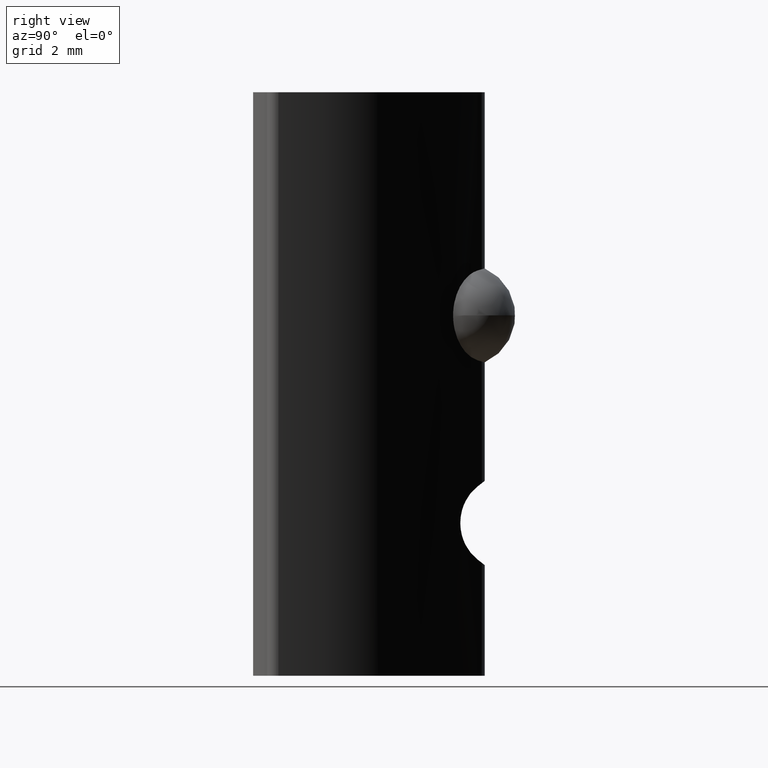
[diagram: clean part render]
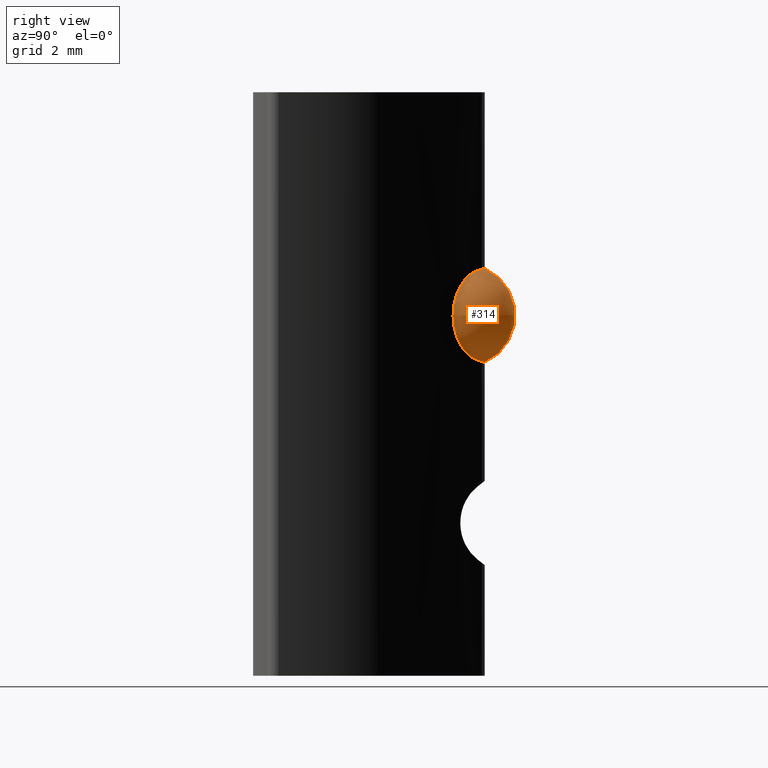
[diagram: same view with one face highlighted and labeled with its STEP entity id]
A machine part, right view. The second image highlights one B-rep face of the part: STEP entity #314.
In plain terms, the highlighted spherical surface has radius 1.5 mm.
Its self-contained STEP definition (entity closure, byte-faithful):
#59=FACE_BOUND('',#91,.T.);
#61=B_SPLINE_CURVE_WITH_KNOTS('',3,(#488,#489,#490,#491,#492,#493,#494,
#495,#496,#497,#498,#499,#500,#501,#502,#503,#504,#505),.UNSPECIFIED.,.F.,
 .F.,(4,2,2,2,2,2,2,2,4),(0.224927419825382,0.268885237807746,0.310193641972786,
0.356110090594978,0.402026539217171,0.447942987839363,0.493859436461555,
0.535167840626594,0.579125658608959),.UNSPECIFIED.);
#62=B_SPLINE_CURVE_WITH_KNOTS('',3,(#507,#508,#509,#510,#511,#512,#513,
#514,#515,#516),.UNSPECIFIED.,.F.,.F.,(4,2,2,2,4),(0.184780951995085,0.197914113345664,
0.236162461852627,0.273970569130265,0.311778676407902),.UNSPECIFIED.);
#63=B_SPLINE_CURVE_WITH_KNOTS('',3,(#518,#519,#520,#521,#522,#523,#524,
#525,#526,#527,#528,#529,#530,#531,#532,#533,#534,#535,#536),
 .UNSPECIFIED.,.F.,.F.,(4,2,2,2,3,2,2,2,4),(-0.177099119391789,-0.133141301409424,
-0.0918328972443856,-0.0459164486221928,0.,0.045916448622193,0.091832897244386,
0.133141301409424,0.177099119391789),.UNSPECIFIED.);
#64=B_SPLINE_CURVE_WITH_KNOTS('',3,(#537,#538,#539,#540,#541,#542,#543,
#544,#545,#546),.UNSPECIFIED.,.F.,.F.,(4,2,2,2,4),(0.314556690148757,0.352364797426395,
0.390172904704032,0.428421253210995,0.441554414561574),.UNSPECIFIED.);
#74=FACE_OUTER_BOUND('',#90,.T.);
#90=EDGE_LOOP('',(#213,#214));
#91=EDGE_LOOP('',(#215,#216,#217,#218));
#108=CIRCLE('',#354,1.5);
#129=VERTEX_POINT('',#483);
#130=VERTEX_POINT('',#484);
#131=VERTEX_POINT('',#486);
#132=VERTEX_POINT('',#487);
#133=VERTEX_POINT('',#506);
#134=VERTEX_POINT('',#517);
#164=EDGE_CURVE('',#129,#130,#108,.T.);
#165=EDGE_CURVE('',#131,#132,#61,.T.);
#166=EDGE_CURVE('',#133,#131,#62,.T.);
#167=EDGE_CURVE('',#134,#133,#63,.T.);
#168=EDGE_CURVE('',#132,#134,#64,.T.);
#213=ORIENTED_EDGE('',*,*,#164,.T.);
#214=ORIENTED_EDGE('',*,*,#164,.F.);
#215=ORIENTED_EDGE('',*,*,#165,.F.);
#216=ORIENTED_EDGE('',*,*,#166,.F.);
#217=ORIENTED_EDGE('',*,*,#167,.F.);
#218=ORIENTED_EDGE('',*,*,#168,.F.);
#311=SPHERICAL_SURFACE('',#353,1.5);
#314=ADVANCED_FACE('',(#74,#59),#311,.T.);
#353=AXIS2_PLACEMENT_3D('',#482,#392,#393);
#354=AXIS2_PLACEMENT_3D('',#485,#394,#395);
#392=DIRECTION('center_axis',(1.,0.,0.));
#393=DIRECTION('ref_axis',(0.,-1.,0.));
#394=DIRECTION('center_axis',(0.,0.,1.));
#395=DIRECTION('ref_axis',(0.,1.,0.));
#482=CARTESIAN_POINT('Origin',(0.,5.5,10.5));
#483=CARTESIAN_POINT('',(1.5,5.5,10.5));
#484=CARTESIAN_POINT('',(-1.5,5.5,10.5));
#485=CARTESIAN_POINT('Origin',(0.,5.5,10.5));
#486=CARTESIAN_POINT('',(0.611941855946153,5.9033888333115,9.19125838527967));
#487=CARTESIAN_POINT('',(0.611941855946153,5.9033888333115,11.8087416147203));
#488=CARTESIAN_POINT('Ctrl Pts',(0.611941855946152,5.9033888333115,9.19125838527967));
#489=CARTESIAN_POINT('Ctrl Pts',(0.734621195394697,5.80846866472019,9.2193639228349));
#490=CARTESIAN_POINT('Ctrl Pts',(0.855099179531908,5.71189845083683,9.27714501025726));
#491=CARTESIAN_POINT('Ctrl Pts',(1.04605820580299,5.55504918070396,9.41755293763258));
#492=CARTESIAN_POINT('Ctrl Pts',(1.14446349483087,5.47192128164891,9.52103385164395));
#493=CARTESIAN_POINT('Ctrl Pts',(1.29158328291991,5.34538174011869,9.7375489539689));
#494=CARTESIAN_POINT('Ctrl Pts',(1.35821350391953,5.28662061536966,9.87839385094758));
#495=CARTESIAN_POINT('Ctrl Pts',(1.44610736328998,5.20843811836978,10.1830866812942));
#496=CARTESIAN_POINT('Ctrl Pts',(1.46743244767338,5.18912701707077,10.3469451712594));
#497=CARTESIAN_POINT('Ctrl Pts',(1.46743244767338,5.18912701707077,10.6530548287406));
#498=CARTESIAN_POINT('Ctrl Pts',(1.44610736328998,5.20843811836978,10.8169133187058));
#499=CARTESIAN_POINT('Ctrl Pts',(1.35821350391953,5.28662061536966,11.1216061490524));
#500=CARTESIAN_POINT('Ctrl Pts',(1.29158328291991,5.34538174011869,11.2624510460311));
#501=CARTESIAN_POINT('Ctrl Pts',(1.14446349483087,5.47192128164891,11.478966148356));
#502=CARTESIAN_POINT('Ctrl Pts',(1.04605820580299,5.55504918070396,11.5824470623674));
#503=CARTESIAN_POINT('Ctrl Pts',(0.855099179531908,5.71189845083683,11.7228549897427));
#504=CARTESIAN_POINT('Ctrl Pts',(0.734621195394696,5.80846866472019,11.7806360771651));
#505=CARTESIAN_POINT('Ctrl Pts',(0.611941855946151,5.9033888333115,11.8087416147203));
#506=CARTESIAN_POINT('',(-0.611941855946148,5.9033888333115,9.19125838527967));
#507=CARTESIAN_POINT('Ctrl Pts',(-0.61194185594615,5.9033888333115,9.19125838527967));
#508=CARTESIAN_POINT('Ctrl Pts',(-0.575997218675293,5.93120012610978,9.18302355651987));
#509=CARTESIAN_POINT('Ctrl Pts',(-0.537824460660647,5.95679294074535,9.17552324665131));
#510=CARTESIAN_POINT('Ctrl Pts',(-0.382008148227603,6.04627426157639,9.14947393372953));
#511=CARTESIAN_POINT('Ctrl Pts',(-0.251146936935633,6.08878509591516,9.13746112967107));
#512=CARTESIAN_POINT('Ctrl Pts',(0.000237782953626479,6.12038633545528,
9.12850317204772));
#513=CARTESIAN_POINT('Ctrl Pts',(0.136549867702317,6.11202958140684,9.13083670730359));
#514=CARTESIAN_POINT('Ctrl Pts',(0.393361902751296,6.04146364842268,9.15095673610722));
#515=CARTESIAN_POINT('Ctrl Pts',(0.513863745726659,5.97927439643076,9.16878892935897));
#516=CARTESIAN_POINT('Ctrl Pts',(0.61194185594615,5.9033888333115,9.19125838527967));
#517=CARTESIAN_POINT('',(-0.611941855946148,5.9033888333115,11.8087416147203));
#518=CARTESIAN_POINT('Ctrl Pts',(-0.61194185594615,5.9033888333115,11.8087416147203));
#519=CARTESIAN_POINT('Ctrl Pts',(-0.734621195394697,5.80846866472018,11.7806360771651));
#520=CARTESIAN_POINT('Ctrl Pts',(-0.855099179531907,5.71189845083683,11.7228549897427));
#521=CARTESIAN_POINT('Ctrl Pts',(-1.04605820580299,5.55504918070396,11.5824470623674));
#522=CARTESIAN_POINT('Ctrl Pts',(-1.14446349483087,5.47192128164891,11.4789661483561));
#523=CARTESIAN_POINT('Ctrl Pts',(-1.29158328291991,5.34538174011869,11.2624510460311));
#524=CARTESIAN_POINT('Ctrl Pts',(-1.35821350391953,5.28662061536966,11.1216061490524));
#525=CARTESIAN_POINT('Ctrl Pts',(-1.44610736328997,5.20843811836978,10.8169133187058));
#526=CARTESIAN_POINT('Ctrl Pts',(-1.46743244767338,5.18912701707077,10.6530548287406));
#527=CARTESIAN_POINT('Ctrl Pts',(-1.46743244767338,5.18912701707077,10.5));
#528=CARTESIAN_POINT('Ctrl Pts',(-1.46743244767338,5.18912701707077,10.3469451712594));
#529=CARTESIAN_POINT('Ctrl Pts',(-1.44610736328997,5.20843811836977,10.1830866812942));
#530=CARTESIAN_POINT('Ctrl Pts',(-1.35821350391953,5.28662061536965,9.87839385094758));
#531=CARTESIAN_POINT('Ctrl Pts',(-1.29158328291991,5.34538174011869,9.73754895396889));
#532=CARTESIAN_POINT('Ctrl Pts',(-1.14446349483087,5.47192128164891,9.52103385164395));
#533=CARTESIAN_POINT('Ctrl Pts',(-1.04605820580299,5.55504918070396,9.41755293763258));
#534=CARTESIAN_POINT('Ctrl Pts',(-0.855099179531908,5.71189845083683,9.27714501025726));
#535=CARTESIAN_POINT('Ctrl Pts',(-0.734621195394696,5.80846866472018,9.2193639228349));
#536=CARTESIAN_POINT('Ctrl Pts',(-0.61194185594615,5.9033888333115,9.19125838527967));
#537=CARTESIAN_POINT('Ctrl Pts',(0.61194185594615,5.9033888333115,11.8087416147203));
#538=CARTESIAN_POINT('Ctrl Pts',(0.513863745726659,5.97927439643076,11.831211070641));
#539=CARTESIAN_POINT('Ctrl Pts',(0.393361902751296,6.04146364842269,11.8490432638928));
#540=CARTESIAN_POINT('Ctrl Pts',(0.136549867702316,6.11202958140684,11.8691632926964));
#541=CARTESIAN_POINT('Ctrl Pts',(0.00023778295362634,6.12038633545528,11.8714968279523));
#542=CARTESIAN_POINT('Ctrl Pts',(-0.251146936935633,6.08878509591516,11.8625388703289));
#543=CARTESIAN_POINT('Ctrl Pts',(-0.382008148227602,6.04627426157639,11.8505260662705));
#544=CARTESIAN_POINT('Ctrl Pts',(-0.537824460660646,5.95679294074536,11.8244767533487));
#545=CARTESIAN_POINT('Ctrl Pts',(-0.575997218675292,5.93120012610979,11.8169764434801));
#546=CARTESIAN_POINT('Ctrl Pts',(-0.61194185594615,5.9033888333115,11.8087416147203));